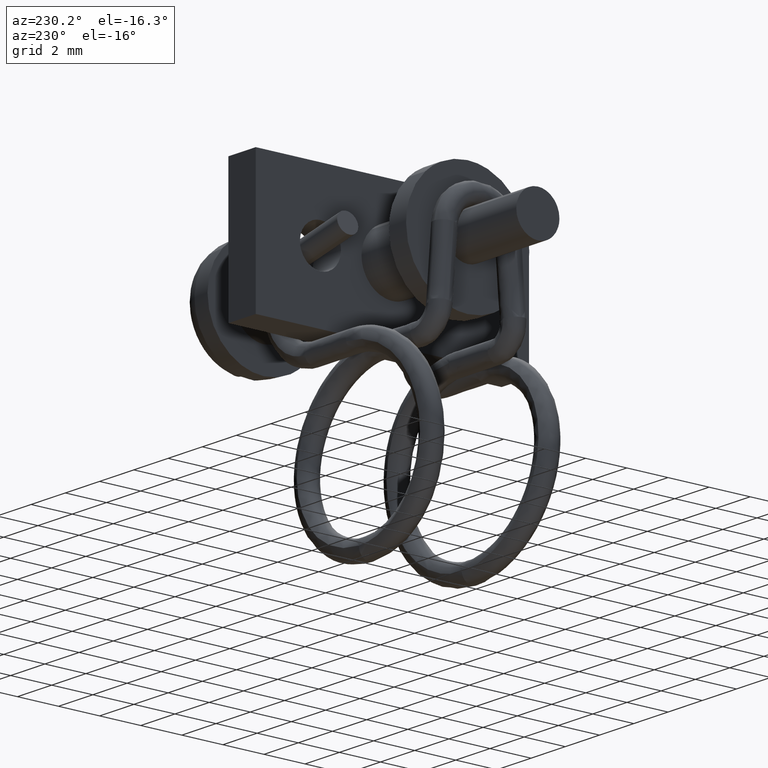
[diagram: clean part render]
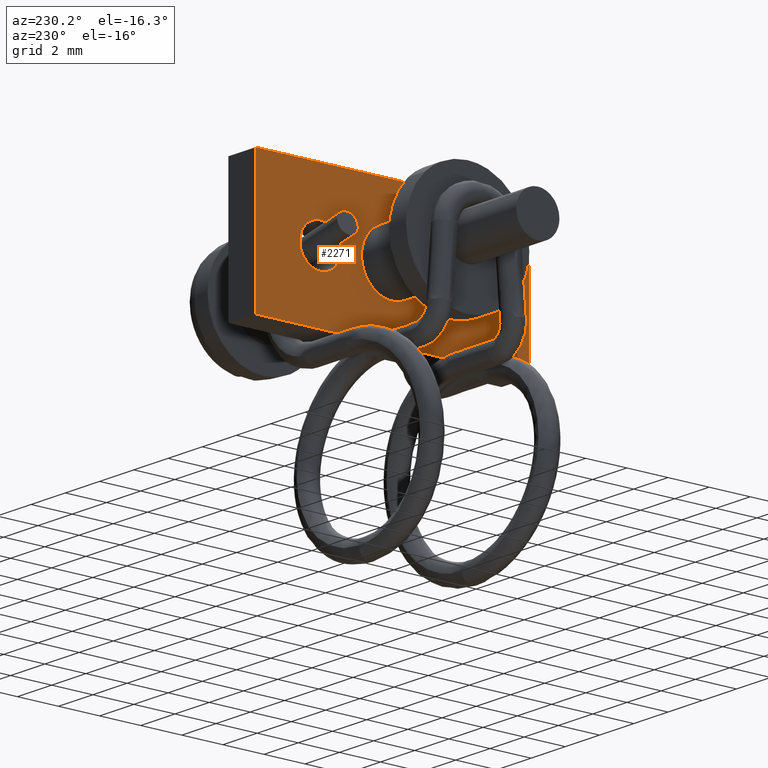
[diagram: same view with one face highlighted and labeled with its STEP entity id]
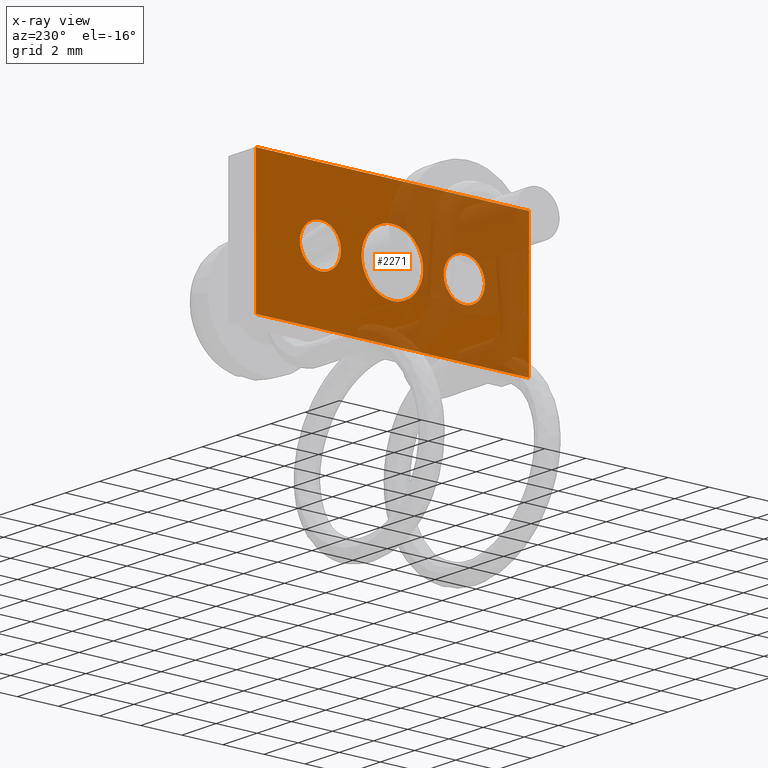
[diagram: x-ray of the same camera — body ghosted, the highlighted face saturated]
A machine part, auxiliary view. The second image highlights one B-rep face of the part: STEP entity #2271.
The next image is the same camera in x-ray: the body ghosted, the highlighted face saturated — about 43% of this face is hidden behind the body in this view.
In plain terms, the highlighted face is a freeform B-spline surface patch.
Its self-contained STEP definition (entity closure, byte-faithful):
#1594=CARTESIAN_POINT('',(-7.499999999999999,1.032531801091217,-1.088061518881801));
#1595=VERTEX_POINT('',#1594);
#1601=CARTESIAN_POINT('',(-7.500000000000000,0.0,-1.500000000000171));
#1602=VERTEX_POINT('',#1601);
#1603=CARTESIAN_POINT('',(-7.500000000000000,0.0,-1.500000000000171));
#1604=CARTESIAN_POINT('',(-7.499999999999996,0.100834762668377,-1.500014755838632));
#1605=CARTESIAN_POINT('',(-7.500000000000012,0.296563590421488,-1.480186386692457));
#1606=CARTESIAN_POINT('',(-7.499999999999987,0.575772088197262,-1.394880733825038));
#1607=CARTESIAN_POINT('',(-7.500000000000027,0.823325948355954,-1.263973945270751));
#1608=CARTESIAN_POINT('',(-7.499999999999997,0.967999791336552,-1.149311159303617));
#1609=CARTESIAN_POINT('',(-7.499999999999999,1.032531801091217,-1.088061518881801));
#1610=B_SPLINE_CURVE_WITH_KNOTS('',3,(#1603,#1604,#1605,#1606,#1607,#1608,#1609),.UNSPECIFIED.,.F.,.U.,(4,1,1,1,4),(6.853170E-009,0.302503014587079,0.587207004602145,0.871919995205422,1.138833968089877),.UNSPECIFIED.);
#1611=EDGE_CURVE('',#1602,#1595,#1610,.T.);
#1613=CARTESIAN_POINT('',(-7.500000000000000,-1.499999999999974,-0.000000281538430));
#1614=VERTEX_POINT('',#1613);
#1615=CARTESIAN_POINT('',(-7.500000000000000,-1.499999999999974,-0.000000281538430));
#1616=CARTESIAN_POINT('',(-7.500000000000007,-1.500028384223728,-0.122720154797015));
#1617=CARTESIAN_POINT('',(-7.499999999999987,-1.473493433026631,-0.337463087728781));
#1618=CARTESIAN_POINT('',(-7.499999999999993,-1.361289031579297,-0.657267239650034));
#1619=CARTESIAN_POINT('',(-7.500000000000017,-1.208866642630177,-0.904636158914845));
#1620=CARTESIAN_POINT('',(-7.499999999999930,-1.016221390334165,-1.111977510217660));
#1621=CARTESIAN_POINT('',(-7.500000000000100,-0.846298760919944,-1.244590185087617));
#1622=CARTESIAN_POINT('',(-7.499999999999863,-0.649148467933149,-1.357871190740954));
#1623=CARTESIAN_POINT('',(-7.500000000000113,-0.380396042640288,-1.465382660696415));
#1624=CARTESIAN_POINT('',(-7.500000000000029,-0.147268840769894,-1.500060812545023));
#1625=CARTESIAN_POINT('',(-7.500000000000000,0.0,-1.500000000000171));
#1626=B_SPLINE_CURVE_WITH_KNOTS('',3,(#1615,#1616,#1617,#1618,#1619,#1620,#1621,#1622,#1623,#1624,#1625),.UNSPECIFIED.,.F.,.U.,(4,1,1,1,1,1,1,1,4),(0.000000025053693,0.368155960646105,0.644277192524137,1.012441796051963,1.233323343282649,1.491037762257990,1.656708174631662,1.914422860658952,2.356209115633355),.UNSPECIFIED.);
#1627=EDGE_CURVE('',#1614,#1602,#1626,.T.);
#1629=CARTESIAN_POINT('',(-7.500000000000000,-1.032531801091219,1.088061518881462));
#1630=VERTEX_POINT('',#1629);
#1631=CARTESIAN_POINT('',(-7.500000000000000,-1.032531801091219,1.088061518881462));
#1632=CARTESIAN_POINT('',(-7.499999999999994,-1.124540582157344,1.000794579682741));
#1633=CARTESIAN_POINT('',(-7.500000000000019,-1.270033978834820,0.822536164743015));
#1634=CARTESIAN_POINT('',(-7.499999999999993,-1.402067535206930,0.553669979822125));
#1635=CARTESIAN_POINT('',(-7.500000000000011,-1.480774423078964,0.285312397945092));
#1636=CARTESIAN_POINT('',(-7.499999999999989,-1.500020501801996,0.107789446436745));
#1637=CARTESIAN_POINT('',(-7.500000000000000,-1.499999999999974,-0.000000281538430));
#1638=B_SPLINE_CURVE_WITH_KNOTS('',3,(#1631,#1632,#1633,#1634,#1635,#1636,#1637),.UNSPECIFIED.,.F.,.U.,(4,1,1,1,4),(7.158433E-009,0.380430441905190,0.684773554229799,0.894009994374206,1.217375581819038),.UNSPECIFIED.);
#1639=EDGE_CURVE('',#1630,#1614,#1638,.T.);
#1679=CARTESIAN_POINT('',(-7.500000000000000,0.0,1.499999999999830));
#1680=VERTEX_POINT('',#1679);
#1681=CARTESIAN_POINT('',(-7.500000000000000,0.0,1.499999999999830));
#1682=CARTESIAN_POINT('',(-7.499999999999996,-0.088971006600615,1.500007290273266));
#1683=CARTESIAN_POINT('',(-7.500000000000025,-0.284704428093699,1.482540940348383));
#1684=CARTESIAN_POINT('',(-7.499999999999961,-0.565240376328538,1.400457858987471));
#1685=CARTESIAN_POINT('',(-7.500000000000051,-0.823325389915407,1.263974302047196));
#1686=CARTESIAN_POINT('',(-7.499999999999977,-0.967999801861614,1.149310643553604));
#1687=CARTESIAN_POINT('',(-7.500000000000000,-1.032531801091219,1.088061518881462));
#1688=B_SPLINE_CURVE_WITH_KNOTS('',3,(#1681,#1682,#1683,#1684,#1685,#1686,#1687),.UNSPECIFIED.,.F.,.U.,(4,1,1,1,4),(6.853136E-009,0.266913979741742,0.587207004602114,0.871919995205405,1.138833968089879),.UNSPECIFIED.);
#1689=EDGE_CURVE('',#1680,#1630,#1688,.T.);
#1691=CARTESIAN_POINT('',(-7.499999999999999,1.499999999999973,0.000000281538099));
#1692=VERTEX_POINT('',#1691);
#1693=CARTESIAN_POINT('',(-7.499999999999999,1.499999999999973,0.000000281538099));
#1694=CARTESIAN_POINT('',(-7.499999999999999,1.500006271290356,0.085902666595731));
#1695=CARTESIAN_POINT('',(-7.499999999999990,1.484676908135816,0.263843190107217));
#1696=CARTESIAN_POINT('',(-7.500000000000020,1.417183841552603,0.513689315111148));
#1697=CARTESIAN_POINT('',(-7.499999999999976,1.295104750939114,0.775986246345876));
#1698=CARTESIAN_POINT('',(-7.500000000000048,1.130881829401952,1.000285896089654));
#1699=CARTESIAN_POINT('',(-7.500000000000007,0.931302210052391,1.183380353541606));
#1700=CARTESIAN_POINT('',(-7.499999999999985,0.711336896124417,1.330375957914220));
#1701=CARTESIAN_POINT('',(-7.499999999999983,0.404943698964944,1.461741024305310));
#1702=CARTESIAN_POINT('',(-7.500000000000103,0.147266181823282,1.500058016900671));
#1703=CARTESIAN_POINT('',(-7.500000000000000,0.0,1.499999999999830));
#1704=B_SPLINE_CURVE_WITH_KNOTS('',3,(#1693,#1694,#1695,#1696,#1697,#1698,#1699,#1700,#1701,#1702,#1703),.UNSPECIFIED.,.F.,.U.,(4,1,1,1,1,1,1,1,4),(0.000000025053573,0.257708480688360,0.533827799326607,0.773134930009581,1.122886480859408,1.362180125260195,1.583074824194697,1.914422860658945,2.356209115633348),.UNSPECIFIED.);
#1705=EDGE_CURVE('',#1692,#1680,#1704,.T.);
#1707=CARTESIAN_POINT('',(-7.499999999999999,1.032531801091217,-1.088061518881801));
#1708=CARTESIAN_POINT('',(-7.499999999999996,1.142966874865222,-0.983356361644208));
#1709=CARTESIAN_POINT('',(-7.500000000000001,1.280413841761641,-0.805876693930076));
#1710=CARTESIAN_POINT('',(-7.500000000000007,1.404251387612348,-0.541019108969038));
#1711=CARTESIAN_POINT('',(-7.499999999999980,1.478905235451920,-0.297992314569507));
#1712=CARTESIAN_POINT('',(-7.500000000000000,1.500026646047553,-0.114131022403370));
#1713=CARTESIAN_POINT('',(-7.499999999999999,1.499999999999973,0.000000281538099));
#1714=B_SPLINE_CURVE_WITH_KNOTS('',3,(#1707,#1708,#1709,#1710,#1711,#1712,#1713),.UNSPECIFIED.,.F.,.U.,(4,1,1,1,4),(7.158427E-009,0.456516695497834,0.665748930233038,0.874988015328548,1.217375581819047),.UNSPECIFIED.);
#1715=EDGE_CURVE('',#1595,#1692,#1714,.T.);
#1803=CARTESIAN_POINT('',(-7.500000000000001,-2.811645499982812,-0.725374324585126));
#1804=VERTEX_POINT('',#1803);
#1810=CARTESIAN_POINT('',(-7.500000000000000,-3.499999999999885,-1.000000000000171));
#1811=VERTEX_POINT('',#1810);
#1812=CARTESIAN_POINT('',(-7.500000000000000,-3.499999999999885,-1.000000000000171));
#1813=CARTESIAN_POINT('',(-7.499999999999998,-3.416958545198596,-1.000020112465956));
#1814=CARTESIAN_POINT('',(-7.499999999999995,-3.274619123556523,-0.982160086029808));
#1815=CARTESIAN_POINT('',(-7.500000000000025,-3.034910068307570,-0.897905497351650));
#1816=CARTESIAN_POINT('',(-7.499999999999980,-2.891922669315709,-0.801642093248098));
#1817=CARTESIAN_POINT('',(-7.500000000000001,-2.811645499982812,-0.725374324585126));
#1818=B_SPLINE_CURVE_WITH_KNOTS('',3,(#1812,#1813,#1814,#1815,#1816,#1817),.UNSPECIFIED.,.F.,.U.,(4,1,1,4),(7.585975E-009,0.249120898558971,0.427059763029018,0.759222620614665),.UNSPECIFIED.);
#1819=EDGE_CURVE('',#1811,#1804,#1818,.T.);
#1821=CARTESIAN_POINT('',(-7.500000000000001,-4.499999999999827,-0.000000343549312));
#1822=VERTEX_POINT('',#1821);
#1823=CARTESIAN_POINT('',(-7.500000000000001,-4.499999999999827,-0.000000343549312));
#1824=CARTESIAN_POINT('',(-7.499999999999996,-4.500074509433024,-0.114548968431613));
#1825=CARTESIAN_POINT('',(-7.500000000000010,-4.469442475838013,-0.290389285907200));
#1826=CARTESIAN_POINT('',(-7.500000000000005,-4.367128258122630,-0.510115224464973));
#1827=CARTESIAN_POINT('',(-7.500000000000001,-4.253968072839472,-0.666688102428503));
#1828=CARTESIAN_POINT('',(-7.499999999999991,-4.118448136995125,-0.792568244273307));
#1829=CARTESIAN_POINT('',(-7.500000000000019,-3.945783254933528,-0.903423005496001));
#1830=CARTESIAN_POINT('',(-7.499999999999942,-3.741345048488408,-0.980841820175254));
#1831=CARTESIAN_POINT('',(-7.500000000000153,-3.577721393589572,-1.000011046889030));
#1832=CARTESIAN_POINT('',(-7.500000000000000,-3.499999999999885,-1.000000000000171));
#1833=B_SPLINE_CURVE_WITH_KNOTS('',3,(#1823,#1824,#1825,#1826,#1827,#1828,#1829,#1830,#1831,#1832),.UNSPECIFIED.,.F.,.U.,(4,1,1,1,1,1,1,4),(0.000000033026377,0.343613147978529,0.527695497369541,0.724044999240128,0.920386927904234,1.079928310418250,1.337640616899920,1.570805989246527),.UNSPECIFIED.);
#1834=EDGE_CURVE('',#1822,#1811,#1833,.T.);
#1836=CARTESIAN_POINT('',(-7.500000000000001,-4.188354500016959,0.725374324584785));
#1837=VERTEX_POINT('',#1836);
#1838=CARTESIAN_POINT('',(-7.500000000000001,-4.188354500016959,0.725374324584785));
#1839=CARTESIAN_POINT('',(-7.499999999999994,-4.255835372883133,0.661382670008194));
#1840=CARTESIAN_POINT('',(-7.500000000000015,-4.346143882352345,0.547796234495773));
#1841=CARTESIAN_POINT('',(-7.499999999999996,-4.433964066464967,0.368947655432567));
#1842=CARTESIAN_POINT('',(-7.500000000000001,-4.486270674385692,0.198663902202595));
#1843=CARTESIAN_POINT('',(-7.500000000000004,-4.500012072785582,0.071859152014062));
#1844=CARTESIAN_POINT('',(-7.500000000000001,-4.499999999999827,-0.000000343549312));
#1845=B_SPLINE_CURVE_WITH_KNOTS('',3,(#1838,#1839,#1840,#1841,#1842,#1843,#1844),.UNSPECIFIED.,.F.,.U.,(4,1,1,1,4),(9.366295E-009,0.278982435967007,0.431150859143399,0.596006729249571,0.811583871291238),.UNSPECIFIED.);
#1846=EDGE_CURVE('',#1837,#1822,#1845,.T.);
#1886=CARTESIAN_POINT('',(-7.500000000000000,-3.499999999999885,0.999999999999830));
#1887=VERTEX_POINT('',#1886);
#1888=CARTESIAN_POINT('',(-7.500000000000000,-3.499999999999885,0.999999999999830));
#1889=CARTESIAN_POINT('',(-7.499999999999992,-3.598863884801075,1.000049652496310));
#1890=CARTESIAN_POINT('',(-7.500000000000005,-3.741185375290411,0.978708422128725));
#1891=CARTESIAN_POINT('',(-7.499999999999994,-3.978387348765327,0.888940685358263));
#1892=CARTESIAN_POINT('',(-7.500000000000020,-4.108083703901697,0.801653738886156));
#1893=CARTESIAN_POINT('',(-7.500000000000001,-4.188354500016959,0.725374324584785));
#1894=B_SPLINE_CURVE_WITH_KNOTS('',3,(#1888,#1889,#1890,#1891,#1892,#1893),.UNSPECIFIED.,.F.,.U.,(4,1,1,4),(7.585975E-009,0.296571970400701,0.427059763029015,0.759222620614663),.UNSPECIFIED.);
#1895=EDGE_CURVE('',#1887,#1837,#1894,.T.);
#1897=CARTESIAN_POINT('',(-7.500000000000001,-2.499999999999944,0.000000343548973));
#1898=VERTEX_POINT('',#1897);
#1899=CARTESIAN_POINT('',(-7.500000000000001,-2.499999999999944,0.000000343548973));
#1900=CARTESIAN_POINT('',(-7.500000000000012,-2.499977204204200,0.085904025974025));
#1901=CARTESIAN_POINT('',(-7.499999999999994,-2.520154450260469,0.241336583657438));
#1902=CARTESIAN_POINT('',(-7.500000000000004,-2.606089420741466,0.468277290486094));
#1903=CARTESIAN_POINT('',(-7.500000000000019,-2.726335734172930,0.645876926239239));
#1904=CARTESIAN_POINT('',(-7.500000000000004,-2.875033591479666,0.787414624349647));
#1905=CARTESIAN_POINT('',(-7.499999999999970,-3.046501614118111,0.900500856222689));
#1906=CARTESIAN_POINT('',(-7.500000000000084,-3.258654430161908,0.980843481298474));
#1907=CARTESIAN_POINT('',(-7.499999999999911,-3.422278684238169,1.000011338079334));
#1908=CARTESIAN_POINT('',(-7.500000000000000,-3.499999999999885,0.999999999999830));
#1909=B_SPLINE_CURVE_WITH_KNOTS('',3,(#1899,#1900,#1901,#1902,#1903,#1904,#1905,#1906,#1907,#1908),.UNSPECIFIED.,.F.,.U.,(4,1,1,1,1,1,1,4),(0.000000033025584,0.257708460470113,0.466333887687882,0.724044999239874,0.895843853950155,1.079928310418274,1.337640616899996,1.570805989246522),.UNSPECIFIED.);
#1910=EDGE_CURVE('',#1898,#1887,#1909,.T.);
#1912=CARTESIAN_POINT('',(-7.500000000000001,-2.811645499982812,-0.725374324585126));
#1913=CARTESIAN_POINT('',(-7.500000000000009,-2.744163985022649,-0.661383780707405));
#1914=CARTESIAN_POINT('',(-7.499999999999997,-2.635253859406330,-0.524413873482473));
#1915=CARTESIAN_POINT('',(-7.500000000000021,-2.526098719185404,-0.274732681012793));
#1916=CARTESIAN_POINT('',(-7.499999999999981,-2.499956991822218,-0.097226206114342));
#1917=CARTESIAN_POINT('',(-7.500000000000001,-2.499999999999944,0.000000343548973));
#1918=B_SPLINE_CURVE_WITH_KNOTS('',3,(#1912,#1913,#1914,#1915,#1916,#1917),.UNSPECIFIED.,.F.,.U.,(4,1,1,4),(9.366276E-009,0.278982435967018,0.519918638759347,0.811583871291239),.UNSPECIFIED.);
#1919=EDGE_CURVE('',#1804,#1898,#1918,.T.);
#2006=CARTESIAN_POINT('',(-7.500000000000001,4.188354500016873,-0.725374324585126));
#2007=VERTEX_POINT('',#2006);
#2013=CARTESIAN_POINT('',(-7.500000000000000,3.499999999999800,-1.000000000000171));
#2014=VERTEX_POINT('',#2013);
#2015=CARTESIAN_POINT('',(-7.500000000000000,3.499999999999800,-1.000000000000171));
#2016=CARTESIAN_POINT('',(-7.499999999999972,3.598864691222539,-1.000048704557389));
#2017=CARTESIAN_POINT('',(-7.500000000000027,3.753044849567982,-0.976928185961318));
#2018=CARTESIAN_POINT('',(-7.499999999999973,3.988925600195224,-0.882836128805681));
#2019=CARTESIAN_POINT('',(-7.500000000000016,4.116670768398482,-0.793456371677502));
#2020=CARTESIAN_POINT('',(-7.500000000000001,4.188354500016873,-0.725374324585126));
#2021=B_SPLINE_CURVE_WITH_KNOTS('',3,(#2015,#2016,#2017,#2018,#2019,#2020),.UNSPECIFIED.,.F.,.U.,(4,1,1,4),(7.586469E-009,0.296571970400939,0.462650657796295,0.759222620614665),.UNSPECIFIED.);
#2022=EDGE_CURVE('',#2014,#2007,#2021,.T.);
#2024=CARTESIAN_POINT('',(-7.500000000000001,2.499999999999859,-0.000000343549312));
#2025=VERTEX_POINT('',#2024);
#2026=CARTESIAN_POINT('',(-7.500000000000001,2.499999999999859,-0.000000343549312));
#2027=CARTESIAN_POINT('',(-7.500000000000003,2.499978799715383,-0.085903688764285));
#2028=CARTESIAN_POINT('',(-7.500000000000001,2.522791482737710,-0.261795272064339));
#2029=CARTESIAN_POINT('',(-7.500000000000000,2.617569539113945,-0.490625096714355));
#2030=CARTESIAN_POINT('',(-7.499999999999991,2.739082723468516,-0.656534532275150));
#2031=CARTESIAN_POINT('',(-7.500000000000066,2.868969030965528,-0.781722010575366));
#2032=CARTESIAN_POINT('',(-7.499999999999947,3.038422489660008,-0.898021638256992));
#2033=CARTESIAN_POINT('',(-7.500000000000058,3.258648243630757,-0.981421980180596));
#2034=CARTESIAN_POINT('',(-7.499999999999959,3.426372087671150,-1.000005853775219));
#2035=CARTESIAN_POINT('',(-7.500000000000000,3.499999999999800,-1.000000000000171));
#2036=B_SPLINE_CURVE_WITH_KNOTS('',3,(#2026,#2027,#2028,#2029,#2030,#2031,#2032,#2033,#2034,#2035),.UNSPECIFIED.,.F.,.U.,(4,1,1,1,1,1,1,4),(0.000000033027343,0.257708460471478,0.527695497370089,0.736324068219063,0.871302861916949,1.067654287903043,1.349916367647245,1.570805989246523),.UNSPECIFIED.);
#2037=EDGE_CURVE('',#2025,#2014,#2036,.T.);
#2039=CARTESIAN_POINT('',(-7.500000000000001,2.811645499982727,0.725374324584785));
#2040=VERTEX_POINT('',#2039);
#2041=CARTESIAN_POINT('',(-7.500000000000001,2.811645499982727,0.725374324584785));
#2042=CARTESIAN_POINT('',(-7.499999999999970,2.744162693227849,0.661385342888837));
#2043=CARTESIAN_POINT('',(-7.500000000000033,2.632594343099779,0.521072190168116));
#2044=CARTESIAN_POINT('',(-7.500000000000035,2.524940673748969,0.270512419824212));
#2045=CARTESIAN_POINT('',(-7.499999999999991,2.499965539545180,0.092996681106187));
#2046=CARTESIAN_POINT('',(-7.500000000000001,2.499999999999859,-0.000000343549312));
#2047=B_SPLINE_CURVE_WITH_KNOTS('',3,(#2041,#2042,#2043,#2044,#2045,#2046),.UNSPECIFIED.,.F.,.U.,(4,1,1,4),(9.366247E-009,0.278982435967015,0.532601444693007,0.811583871291238),.UNSPECIFIED.);
#2048=EDGE_CURVE('',#2040,#2025,#2047,.T.);
#2088=CARTESIAN_POINT('',(-7.500000000000000,3.499999999999800,0.999999999999830));
#2089=VERTEX_POINT('',#2088);
#2090=CARTESIAN_POINT('',(-7.500000000000000,3.499999999999800,0.999999999999830));
#2091=CARTESIAN_POINT('',(-7.500000000000004,3.377394620947258,1.000116985017207));
#2092=CARTESIAN_POINT('',(-7.499999999999994,3.207446547574142,0.968331086352061));
#2093=CARTESIAN_POINT('',(-7.500000000000003,2.977783294259039,0.860485099358648));
#2094=CARTESIAN_POINT('',(-7.500000000000003,2.871867689629527,0.782552609291879));
#2095=CARTESIAN_POINT('',(-7.500000000000001,2.811645499982727,0.725374324584785));
#2096=B_SPLINE_CURVE_WITH_KNOTS('',3,(#2090,#2091,#2092,#2093,#2094,#2095),.UNSPECIFIED.,.F.,.U.,(4,1,1,4),(7.586136E-009,0.367753314126774,0.510101729648808,0.759222620614664),.UNSPECIFIED.);
#2097=EDGE_CURVE('',#2089,#2040,#2096,.T.);
#2099=CARTESIAN_POINT('',(-7.500000000000001,4.499999999999742,0.000000343548973));
#2100=VERTEX_POINT('',#2099);
#2101=CARTESIAN_POINT('',(-7.500000000000001,4.499999999999742,0.000000343548973));
#2102=CARTESIAN_POINT('',(-7.500000000000004,4.500026441277958,0.085905831669612));
#2103=CARTESIAN_POINT('',(-7.500000000000004,4.481961341844821,0.224971707025924));
#2104=CARTESIAN_POINT('',(-7.500000000000002,4.416734122032918,0.410834895043071));
#2105=CARTESIAN_POINT('',(-7.499999999999995,4.317776644992790,0.590704615524663));
#2106=CARTESIAN_POINT('',(-7.500000000000020,4.171726566288673,0.753838666252871));
#2107=CARTESIAN_POINT('',(-7.499999999999962,3.981902936881431,0.884041023443360));
#2108=CARTESIAN_POINT('',(-7.500000000000020,3.765869481388863,0.975096482282735));
#2109=CARTESIAN_POINT('',(-7.499999999999919,3.598179191175085,1.000041645676318));
#2110=CARTESIAN_POINT('',(-7.500000000000000,3.499999999999800,0.999999999999830));
#2111=B_SPLINE_CURVE_WITH_KNOTS('',3,(#2101,#2102,#2103,#2104,#2105,#2106,#2107,#2108,#2109,#2110),.UNSPECIFIED.,.F.,.U.,(4,1,1,1,1,1,1,4),(0.000000033025517,0.257708460469986,0.417246048961678,0.589057441331798,0.871302861916336,1.067654287902713,1.276280689435858,1.570805989246526),.UNSPECIFIED.);
#2112=EDGE_CURVE('',#2100,#2089,#2111,.T.);
#2114=CARTESIAN_POINT('',(-7.500000000000001,4.188354500016873,-0.725374324585126));
#2115=CARTESIAN_POINT('',(-7.500000000000004,4.234349136590526,-0.681732653869055));
#2116=CARTESIAN_POINT('',(-7.499999999999974,4.326373561152963,-0.576064772419447));
#2117=CARTESIAN_POINT('',(-7.500000000000055,4.427645720525919,-0.393842143889190));
#2118=CARTESIAN_POINT('',(-7.499999999999881,4.487499636605258,-0.194440671295065));
#2119=CARTESIAN_POINT('',(-7.500000000000095,4.500005654168424,-0.063404292909105));
#2120=CARTESIAN_POINT('',(-7.500000000000001,4.499999999999742,0.000000343548973));
#2121=B_SPLINE_CURVE_WITH_KNOTS('',3,(#2114,#2115,#2116,#2117,#2118,#2119,#2120),.UNSPECIFIED.,.F.,.U.,(4,1,1,1,4),(9.366205E-009,0.190214798287005,0.418467724136200,0.621369082368414,0.811583871291240),.UNSPECIFIED.);
#2122=EDGE_CURVE('',#2007,#2100,#2121,.T.);
#2212=CARTESIAN_POINT('',(-7.499999999999900,-7.314334974222019,3.574674987401674));
#2213=CARTESIAN_POINT('',(-7.499999999999900,7.314335330955819,3.574674987401674));
#2214=CARTESIAN_POINT('',(-7.499999999999900,-7.314334974222019,-3.574675161745499));
#2215=CARTESIAN_POINT('',(-7.499999999999900,7.314335330955819,-3.574675161745499));
#2216=B_SPLINE_SURFACE_WITH_KNOTS('',1,1,((#2212,#2214),(#2213,#2215)),.UNSPECIFIED.,.F.,.F.,.U.,(2,2),(2,2),(0.0,14.628670305177840),(0.0,7.149350149147173),.UNSPECIFIED.);
#2217=CARTESIAN_POINT('',(-7.500000000000000,-6.650000000000000,3.249999999999930));
#2218=VERTEX_POINT('',#2217);
#2219=CARTESIAN_POINT('',(-7.500000000000000,-6.650000000000000,-3.250000000000170));
#2220=VERTEX_POINT('',#2219);
#2221=CARTESIAN_POINT('',(-7.500000000000000,-6.650000000000000,3.249999999999930));
#2222=CARTESIAN_POINT('',(-7.500000000000000,-6.650000000000000,-3.250000000000170));
#2223=QUASI_UNIFORM_CURVE('',1,(#2221,#2222),.UNSPECIFIED.,.F.,.U.);
#2224=EDGE_CURVE('',#2218,#2220,#2223,.T.);
#2225=ORIENTED_EDGE('',*,*,#2224,.F.);
#2226=CARTESIAN_POINT('',(-7.500000000000000,6.650000000000000,3.249999999999930));
#2227=VERTEX_POINT('',#2226);
#2228=CARTESIAN_POINT('',(-7.500000000000000,6.650000000000000,3.249999999999930));
#2229=CARTESIAN_POINT('',(-7.500000000000000,-6.650000000000000,3.249999999999930));
#2230=QUASI_UNIFORM_CURVE('',1,(#2228,#2229),.UNSPECIFIED.,.F.,.U.);
#2231=EDGE_CURVE('',#2227,#2218,#2230,.T.);
#2232=ORIENTED_EDGE('',*,*,#2231,.F.);
#2233=CARTESIAN_POINT('',(-7.500000000000000,6.650000000000000,-3.250000000000170));
#2234=VERTEX_POINT('',#2233);
#2235=CARTESIAN_POINT('',(-7.500000000000000,6.650000000000000,-3.250000000000170));
#2236=CARTESIAN_POINT('',(-7.500000000000000,6.650000000000000,3.249999999999930));
#2237=QUASI_UNIFORM_CURVE('',1,(#2235,#2236),.UNSPECIFIED.,.F.,.U.);
#2238=EDGE_CURVE('',#2234,#2227,#2237,.T.);
#2239=ORIENTED_EDGE('',*,*,#2238,.F.);
#2240=CARTESIAN_POINT('',(-7.500000000000000,-6.650000000000000,-3.250000000000170));
#2241=CARTESIAN_POINT('',(-7.500000000000000,6.650000000000000,-3.250000000000170));
#2242=QUASI_UNIFORM_CURVE('',1,(#2240,#2241),.UNSPECIFIED.,.F.,.U.);
#2243=EDGE_CURVE('',#2220,#2234,#2242,.T.);
#2244=ORIENTED_EDGE('',*,*,#2243,.F.);
#2245=EDGE_LOOP('',(#2225,#2232,#2239,#2244));
#2246=FACE_OUTER_BOUND('',#2245,.T.);
#2247=ORIENTED_EDGE('',*,*,#2037,.T.);
#2248=ORIENTED_EDGE('',*,*,#2022,.T.);
#2249=ORIENTED_EDGE('',*,*,#2122,.T.);
#2250=ORIENTED_EDGE('',*,*,#2112,.T.);
#2251=ORIENTED_EDGE('',*,*,#2097,.T.);
#2252=ORIENTED_EDGE('',*,*,#2048,.T.);
#2253=EDGE_LOOP('',(#2247,#2248,#2249,#2250,#2251,#2252));
#2254=FACE_BOUND('',#2253,.T.);
#2255=ORIENTED_EDGE('',*,*,#1834,.T.);
#2256=ORIENTED_EDGE('',*,*,#1819,.T.);
#2257=ORIENTED_EDGE('',*,*,#1919,.T.);
#2258=ORIENTED_EDGE('',*,*,#1910,.T.);
#2259=ORIENTED_EDGE('',*,*,#1895,.T.);
#2260=ORIENTED_EDGE('',*,*,#1846,.T.);
#2261=EDGE_LOOP('',(#2255,#2256,#2257,#2258,#2259,#2260));
#2262=FACE_BOUND('',#2261,.T.);
#2263=ORIENTED_EDGE('',*,*,#1627,.T.);
#2264=ORIENTED_EDGE('',*,*,#1611,.T.);
#2265=ORIENTED_EDGE('',*,*,#1715,.T.);
#2266=ORIENTED_EDGE('',*,*,#1705,.T.);
#2267=ORIENTED_EDGE('',*,*,#1689,.T.);
#2268=ORIENTED_EDGE('',*,*,#1639,.T.);
#2269=EDGE_LOOP('',(#2263,#2264,#2265,#2266,#2267,#2268));
#2270=FACE_BOUND('',#2269,.T.);
#2271=ADVANCED_FACE('',(#2246,#2254,#2262,#2270),#2216,.T.);